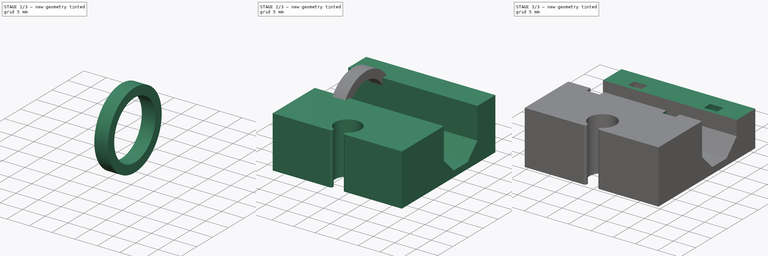
[diagram: build sequence overview — one tinted view per stage of 3, left to right]
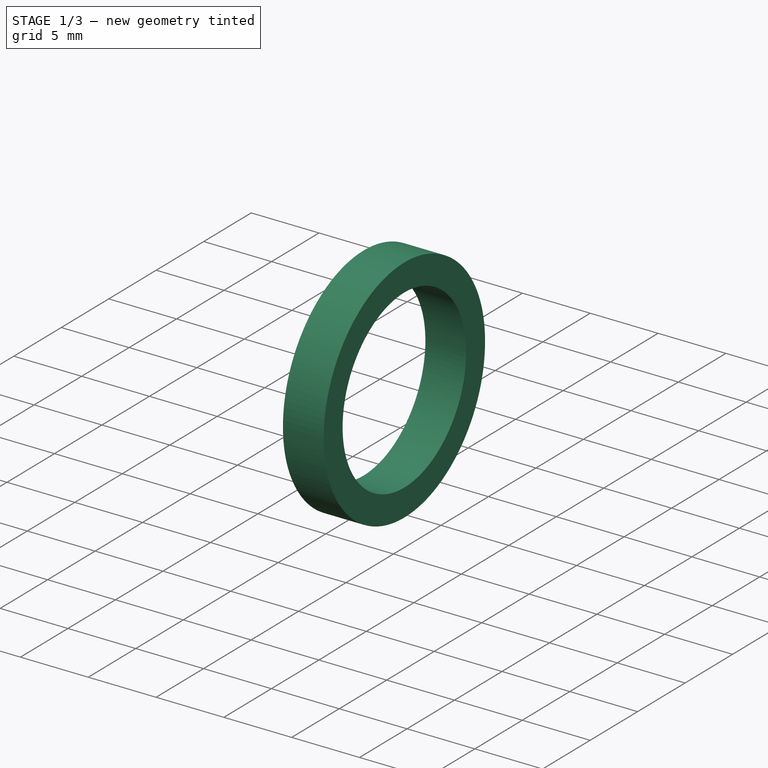
[diagram: stage 1 of 3 — iso view after this stage's code; geometry added in this stage tinted green]
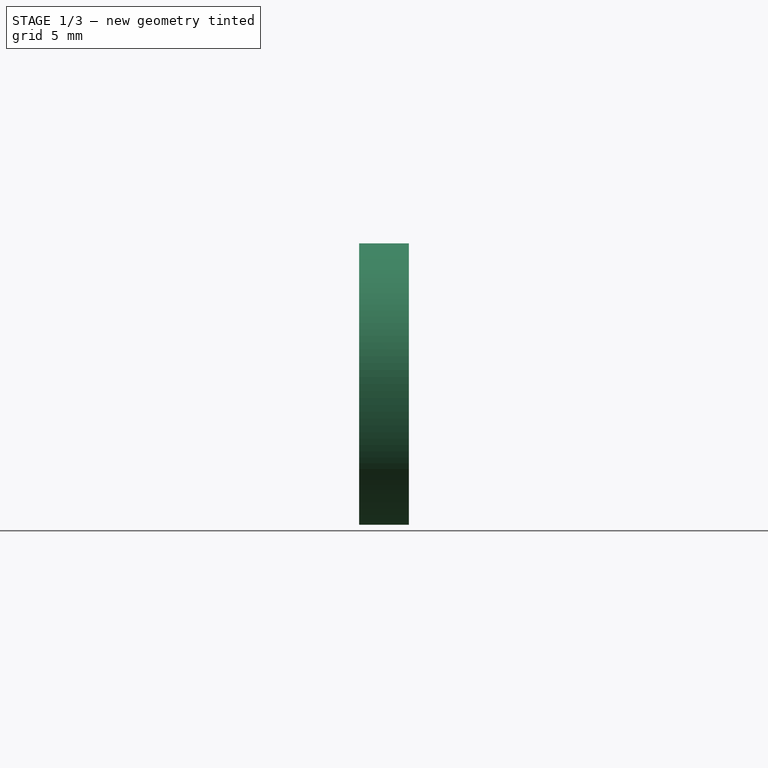
[diagram: stage 1 of 3 — front view after this stage's code; geometry added in this stage tinted green]
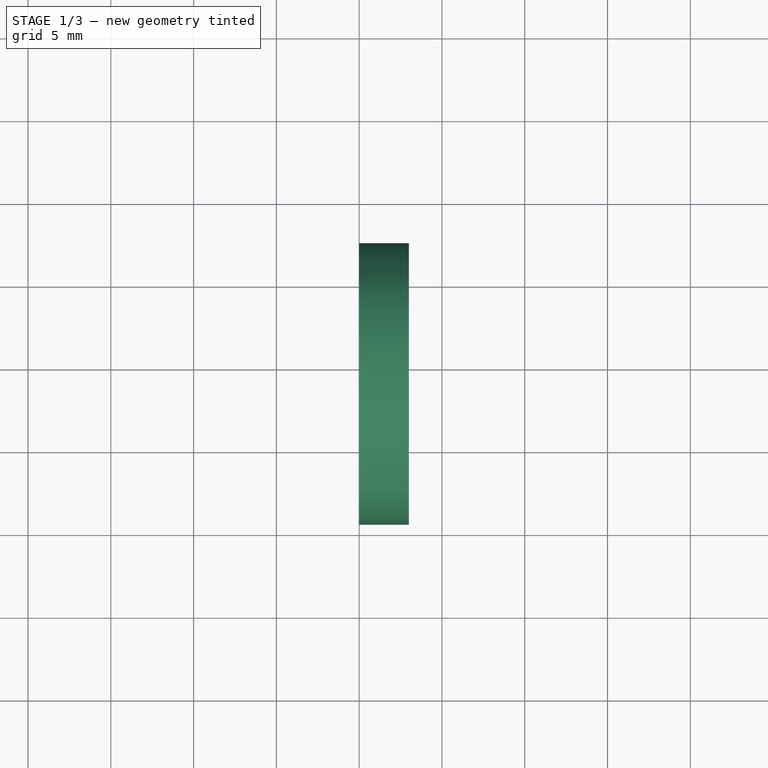
[diagram: stage 1 of 3 — top view after this stage's code; geometry added in this stage tinted green]
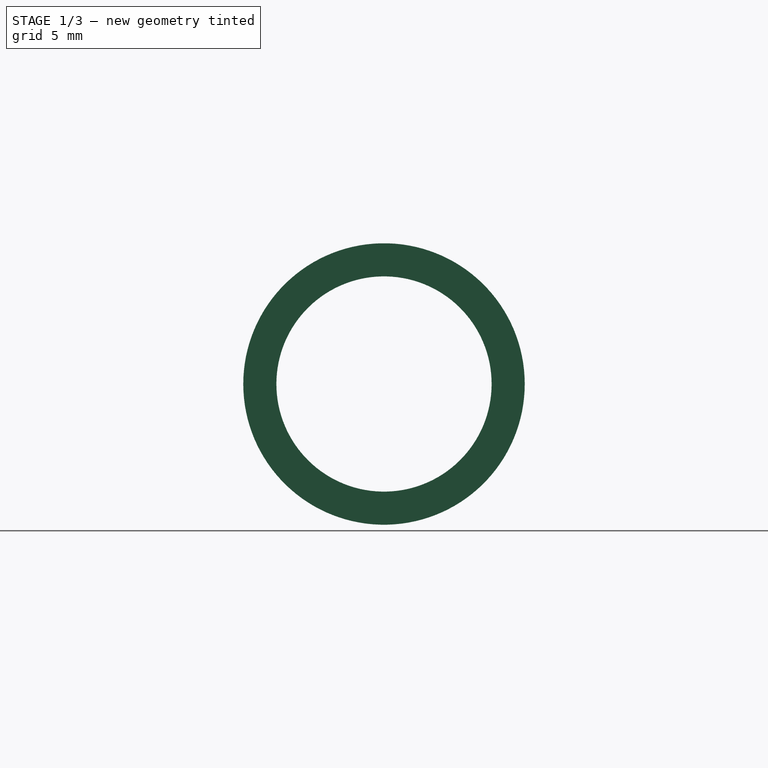
[diagram: stage 1 of 3 — right view after this stage's code; geometry added in this stage tinted green]
FCSTD DOCUMENT  (FreeCAD 0.16R5326 (Git))
Label: sliding-block
License: All rights reserved
LicenseURL: https://ru.wikipedia.org/wiki/All_rights_reserved
objects: Sketcher::SketchObject×6, PartDesign::Pocket×3, PartDesign::Pad×2, Part::Cut×2, Spreadsheet::Sheet×1, Part::Mirroring×1
note: 19 computed .brp shape members not serialized (recipe doc carries the construction recipe); baked Part::Feature solids carry a one-line shape summary decoded from their .brp

FEATURE [Sketcher::SketchObject] Sketch003
  Placement = pos=(10,0,0) rot=(0.57735,0.57735,0.57735;2.0944rad)
  sketch-geometry (1):
    g0: Circle CenterX=4 CenterY=7 CenterZ=0 NormalX=0 NormalY=0 NormalZ=1 Radius=8.5
  constraints (3):
    c: DistanceY(g-1,g0) = 7
    c: DistanceX(g-1,g0) = 4
    c: Radius(g0) = 8.5
FEATURE [PartDesign::Pad] Pad001
  Length = 3
  Length2 = 100
  Placement = pos=(10,0,0) rot=(0.57735,0.57735,0.57735;2.0944rad)
  Reversed = true
  Sketch = -> Sketch003
  Type = 0
FEATURE [Sketcher::SketchObject] Sketch004
  ExternalGeometry = -> [Pad001]
  Placement = pos=(10,0,0) rot=(0.57735,0.57735,0.57735;2.0944rad)
  Support = -> Pad001 [Face2]
  sketch-geometry (1):
    g0: Circle CenterX=4 CenterY=7 CenterZ=0 NormalX=0 NormalY=0 NormalZ=1 Radius=6.5
  constraints (2):
    c: Coincident(g0,g-3)
    c: Radius(g0) = 6.5
FEATURE [PartDesign::Pocket] Pocket002
  Length = 5
  Placement = pos=(10,0,0) rot=(0.57735,0.57735,0.57735;2.0944rad)
  Sketch = -> Sketch004
  Type = 1
FEATURE [Part::Mirroring] Part__Mirroring  label="Pocket002 (Mirror #1)"
  Base = (0,0,0)
  Normal = (1,0,0)
  Source = -> Pocket002
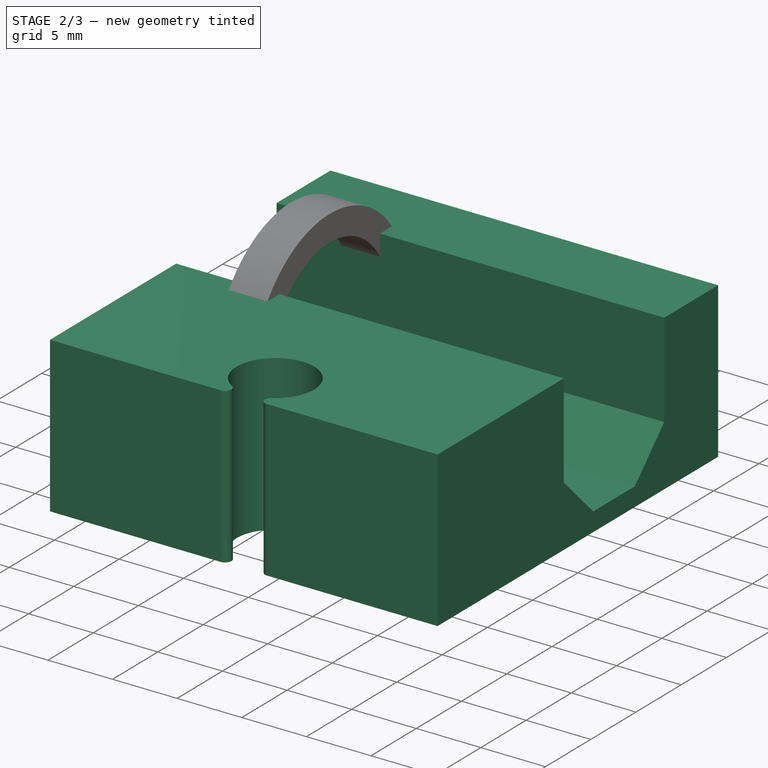
[diagram: stage 2 of 3 — iso view after this stage's code; geometry added in this stage tinted green]
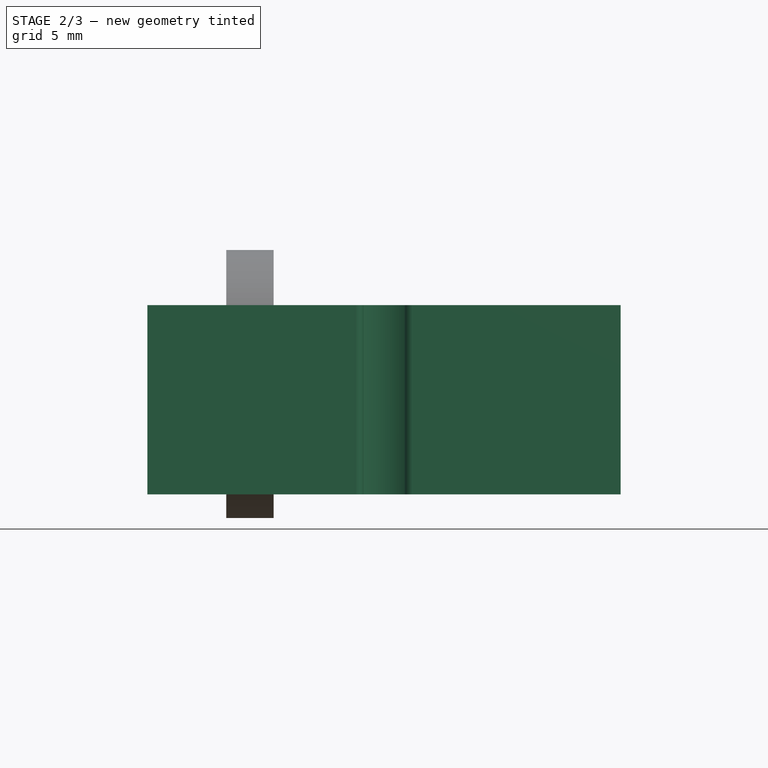
[diagram: stage 2 of 3 — front view after this stage's code; geometry added in this stage tinted green]
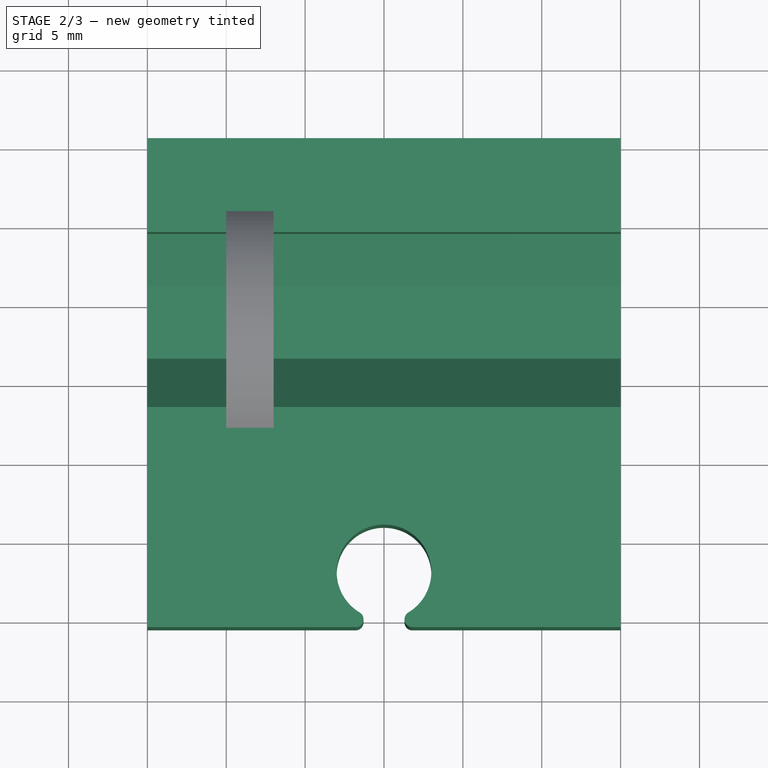
[diagram: stage 2 of 3 — top view after this stage's code; geometry added in this stage tinted green]
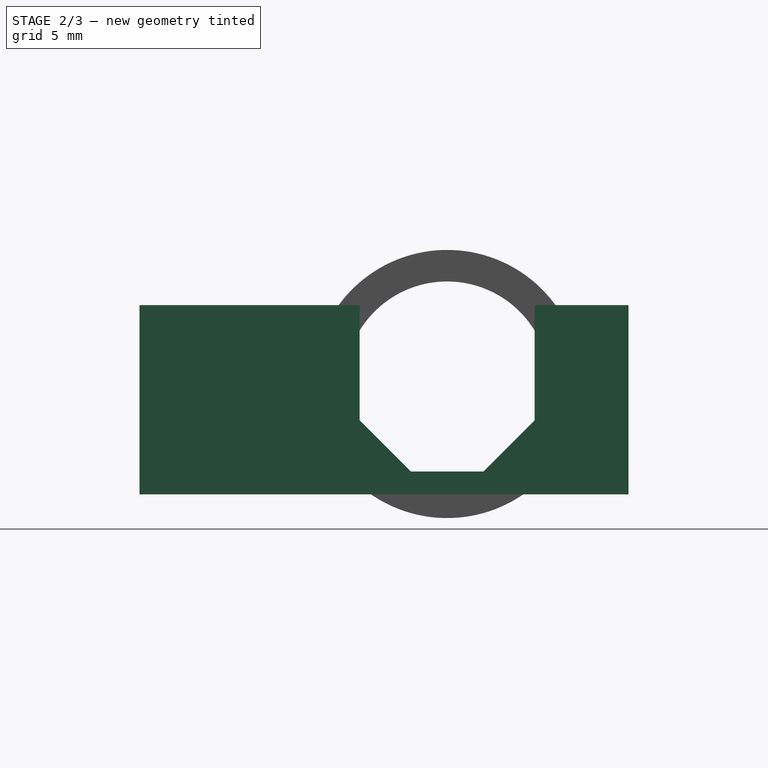
[diagram: stage 2 of 3 — right view after this stage's code; geometry added in this stage tinted green]
FEATURE [Spreadsheet::Sheet] Spreadsheet
  cells = A1=height; B1(c)=31.5; A2=Width; B2=34; A3=axis to axis; B3=18
  currColumn = 1
  currRow = 3
FEATURE [Sketcher::SketchObject] Sketch  label="body"
  sketch-geometry (8):
    g0: LineSegment StartX=-15 StartY=15.5 StartZ=0 EndX=15 EndY=15.5 EndZ=0
    g1: LineSegment StartX=15 StartY=15.5 StartZ=0 EndX=15 EndY=-15.5 EndZ=0
    g2: LineSegment StartX=-15 StartY=-15.5 StartZ=0 EndX=-15 EndY=15.5 EndZ=0
    g3: ArcOfCircle CenterX=0 CenterY=-12 CenterZ=0 NormalX=0 NormalY=0 NormalZ=1 Radius=3 StartAngle=5.25269 EndAngle=10.4553
    g4: ArcOfCircle CenterX=-1.79851 CenterY=-15.0026 CenterZ=0 NormalX=0 NormalY=0 NormalZ=1 Radius=0.5 StartAngle=4.61128 EndAngle=7.31803
    g5: LineSegment StartX=-15 StartY=-15.5 StartZ=0 EndX=-1.84898 EndY=-15.5 EndZ=0
    g6: ArcOfCircle CenterX=1.79851 CenterY=-15.0026 CenterZ=0 NormalX=0 NormalY=0 NormalZ=1 Radius=0.5 StartAngle=2.10675 EndAngle=4.8135
    g7: LineSegment StartX=1.84898 StartY=-15.5 StartZ=0 EndX=15 EndY=-15.5 EndZ=0
  constraints (25):
    c: Coincident(g0,g1)
    c: Coincident(g2,g0)
    c: Horizontal(g0)
    c: Vertical(g1)
    c: Vertical(g2)
    c: DistanceX(g0,g0) = 30
    c: DistanceY(g0,g1) = -31
    c: Symmetric(g0,g0,g-2)
    c: Symmetric(g1,g0,g-1)
    c: PointOnObject(g3,g-2)
    c: Radius(g3) = 3
    c: Coincident(g4,g3)
    c: Radius(g4) = 0.5
    c: Coincident(g5,g4)
    c: Horizontal(g5)
    c: Coincident(g5,g2)
    c: Equal(g1,g2)
    c: Coincident(g6,g3)
    c: Coincident(g7,g6)
    c: Coincident(g7,g1)
    c: Horizontal(g7)
    c: Equal(g7,g5)
    c: Equal(g6,g4)
    c: Symmetric(g3,g3,g-2)
    c: DistanceY(g-1,g3) = -12
FEATURE [PartDesign::Pad] Pad
  Length = 12
  Length2 = 100
  Sketch = -> Sketch
  Type = 0
FEATURE [Sketcher::SketchObject] Sketch001
  ExternalGeometry = -> [Pad]
  Placement = pos=(-15,0,0) rot=(0.57735,-0.57735,-0.57735;2.0944rad)
  Support = -> Pad [Face2]
  sketch-geometry (12):
    g0: LineSegment StartX=1.55 StartY=4.70111 StartZ=0 EndX=1.55 EndY=9.29889 EndZ=0
    g1: LineSegment [constr] StartX=1.55 StartY=9.29889 StartZ=0 EndX=-1.70111 EndY=12.55 EndZ=0
    g2: LineSegment [constr] StartX=-1.70111 StartY=12.55 StartZ=0 EndX=-6.29889 EndY=12.55 EndZ=0
    g3: LineSegment [constr] StartX=-6.29889 StartY=12.55 StartZ=0 EndX=-9.55 EndY=9.29889 EndZ=0
    g4: LineSegment StartX=-9.55 StartY=9.29889 StartZ=0 EndX=-9.55 EndY=4.70111 EndZ=0
    g5: LineSegment StartX=-9.55 StartY=4.70111 StartZ=0 EndX=-6.29889 EndY=1.45 EndZ=0
    g6: LineSegment StartX=-6.29889 StartY=1.45 StartZ=0 EndX=-1.70111 EndY=1.45 EndZ=0
    g7: LineSegment StartX=-1.70111 StartY=1.45 StartZ=0 EndX=1.55 EndY=4.70111 EndZ=0
    g8: Circle [constr] CenterX=-4 CenterY=7 CenterZ=0 NormalX=0 NormalY=0 NormalZ=1 Radius=6.00728
    g9: LineSegment StartX=-9.55 StartY=9.29889 StartZ=0 EndX=-9.55 EndY=12 EndZ=0
    g10: LineSegment StartX=-9.55 StartY=12 StartZ=0 EndX=1.55 EndY=12 EndZ=0
    g11: LineSegment StartX=1.55 StartY=12 StartZ=0 EndX=1.55 EndY=9.29889 EndZ=0
  constraints (29):
    c: Coincident(g0,g1)
    c: Coincident(g1,g2)
    c: Coincident(g2,g3)
    c: Coincident(g3,g4)
    c: Coincident(g4,g5)
    c: Coincident(g5,g6)
    c: Coincident(g6,g7)
    c: Coincident(g7,g0)
    c: Equal(g0, g1-g7) x7
    c: PointOnObject(g0,g8)
    c: PointOnObject(g1,g8)
    c: PointOnObject(g2,g8)
    c: PointOnObject(g3,g8)
    c: PointOnObject(g4,g8)
    c: PointOnObject(g5,g8)
    c: PointOnObject(g6,g8)
    c: PointOnObject(g7,g8)
    c: Horizontal(g6)
    c: DistanceY(g8,g6) = -5.55
    c: DistanceY(g8,g-4) = -7
    c: DistanceX(g-1,g8) = -4
    c: Vertical(g9)
    c: Coincident(g10,g9)
    c: PointOnObject(g10,g-3)
    c: Horizontal(g10)
    c: Coincident(g11,g10)
    c: Coincident(g11,g0)
    c: Vertical(g11)
    c: Coincident(g3,g9)
FEATURE [PartDesign::Pocket] Pocket
  Length = 5
  Sketch = -> Sketch001
  Type = 1
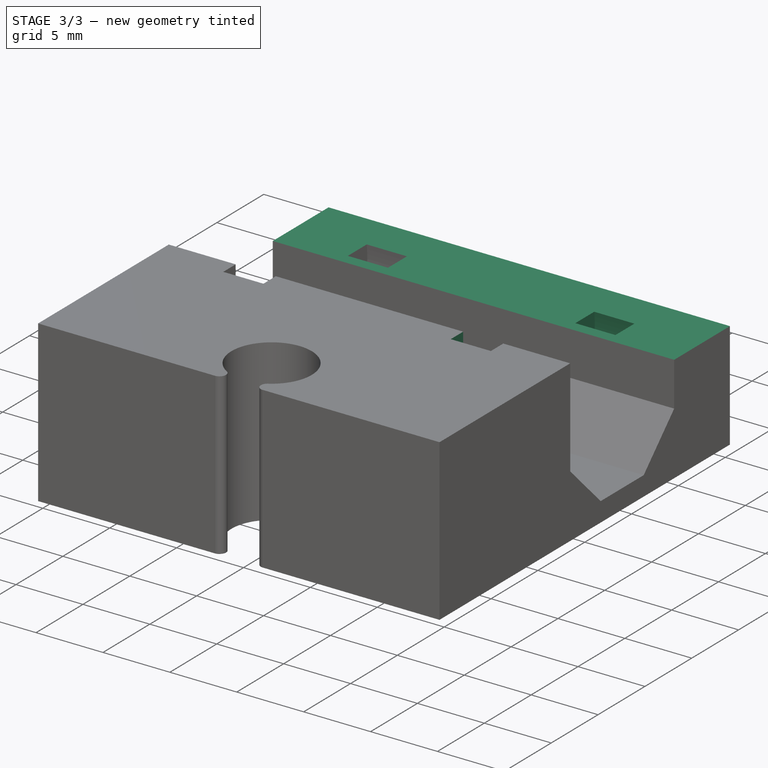
[diagram: stage 3 of 3 — iso view after this stage's code; geometry added in this stage tinted green]
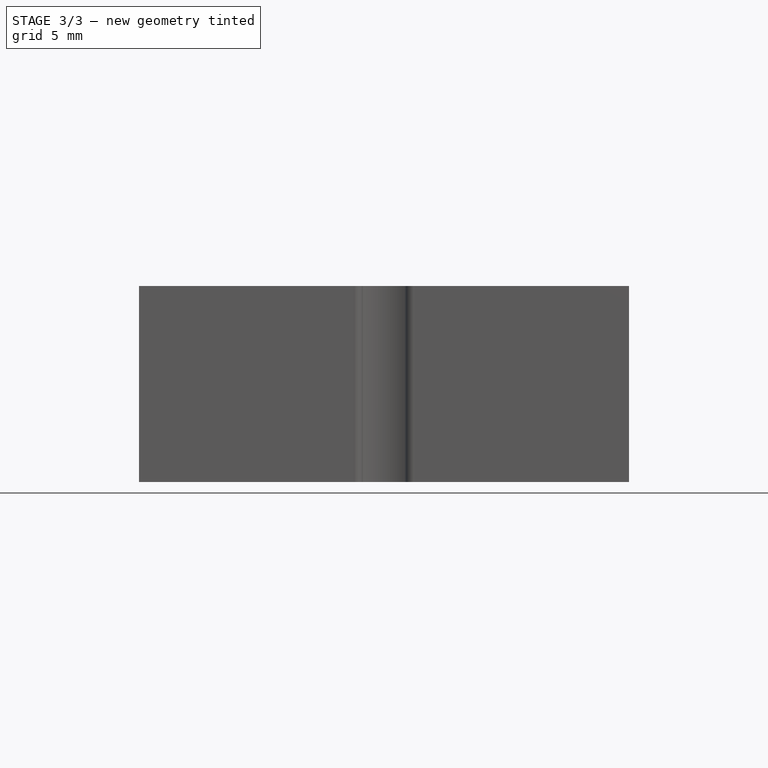
[diagram: stage 3 of 3 — front view after this stage's code; geometry added in this stage tinted green]
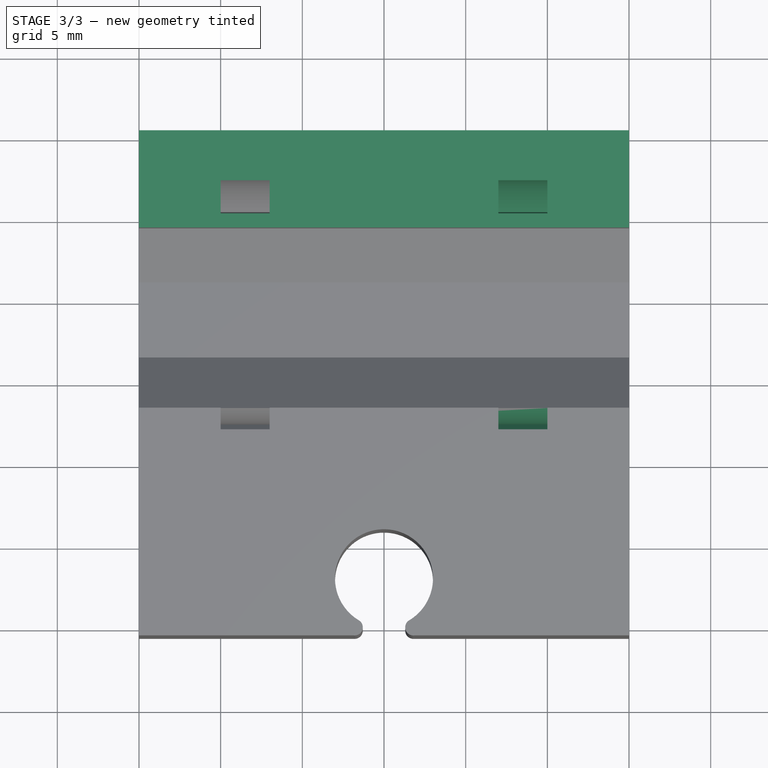
[diagram: stage 3 of 3 — top view after this stage's code; geometry added in this stage tinted green]
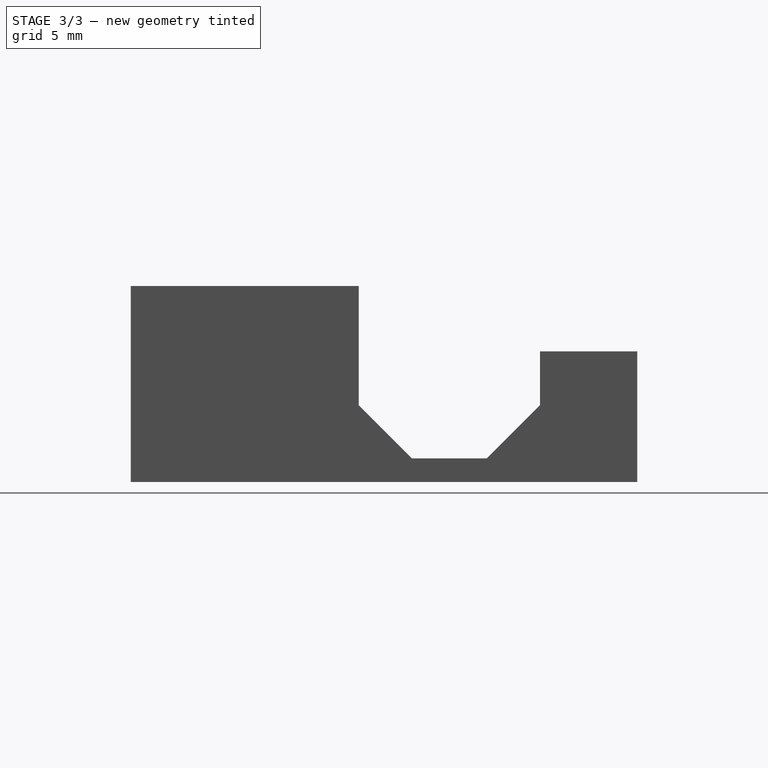
[diagram: stage 3 of 3 — right view after this stage's code; geometry added in this stage tinted green]
FEATURE [Sketcher::SketchObject] Sketch002
  ExternalGeometry = -> [Pocket]
  Placement = pos=(-15,0,0) rot=(0.57735,-0.57735,-0.57735;2.0944rad)
  Support = -> Pocket [Face2]
  sketch-geometry (4):
    g0: LineSegment StartX=-15.5 StartY=12 StartZ=0 EndX=-9.55 EndY=12 EndZ=0
    g1: LineSegment StartX=-9.55 StartY=12 StartZ=0 EndX=-9.55 EndY=8 EndZ=0
    g2: LineSegment StartX=-9.55 StartY=8 StartZ=0 EndX=-15.5 EndY=8 EndZ=0
    g3: LineSegment StartX=-15.5 StartY=8 StartZ=0 EndX=-15.5 EndY=12 EndZ=0
  constraints (11):
    c: Coincident(g0,g1)
    c: Coincident(g1,g2)
    c: Coincident(g2,g3)
    c: Coincident(g3,g0)
    c: Horizontal(g0)
    c: Horizontal(g2)
    c: Vertical(g1)
    c: Vertical(g3)
    c: Coincident(g0,g-3)
    c: Coincident(g0,g-3)
    c: DistanceY(g3) = 4
FEATURE [PartDesign::Pocket] Pocket001
  Length = 5
  Sketch = -> Sketch002
  Type = 1
FEATURE [Part::Cut] Cut
  Base = -> Pocket001
  Tool = -> Part__Mirroring
FEATURE [Part::Cut] Cut001
  Base = -> Cut
  Tool = -> Pocket002
FEATURE [Sketcher::SketchObject] Sketch005
  Placement = pos=(0,0,12) rot=(0,0,1;0rad)
  Support = -> Cut001 [Face5]
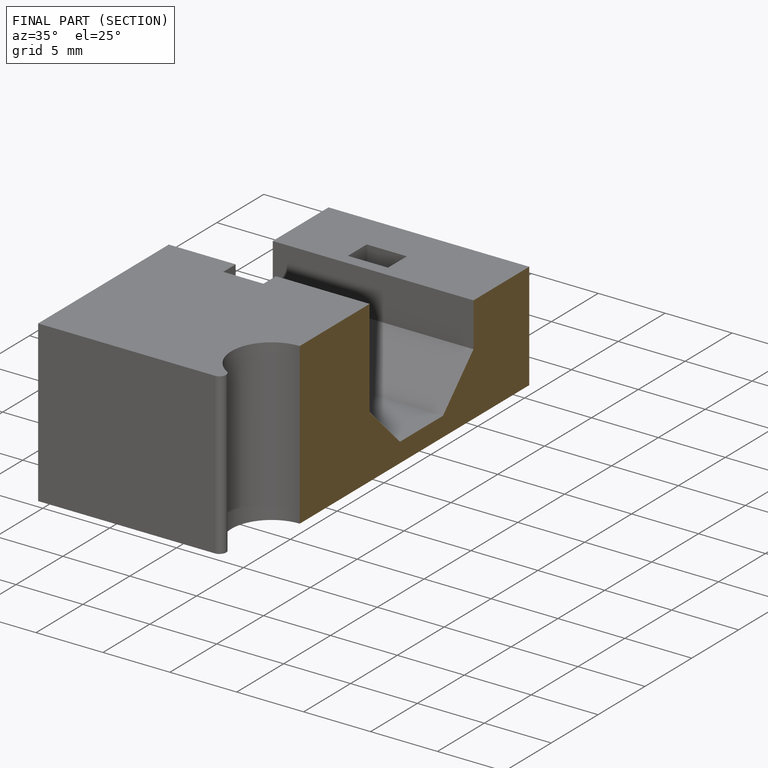
[diagram: finished part — half-section view (interior)]
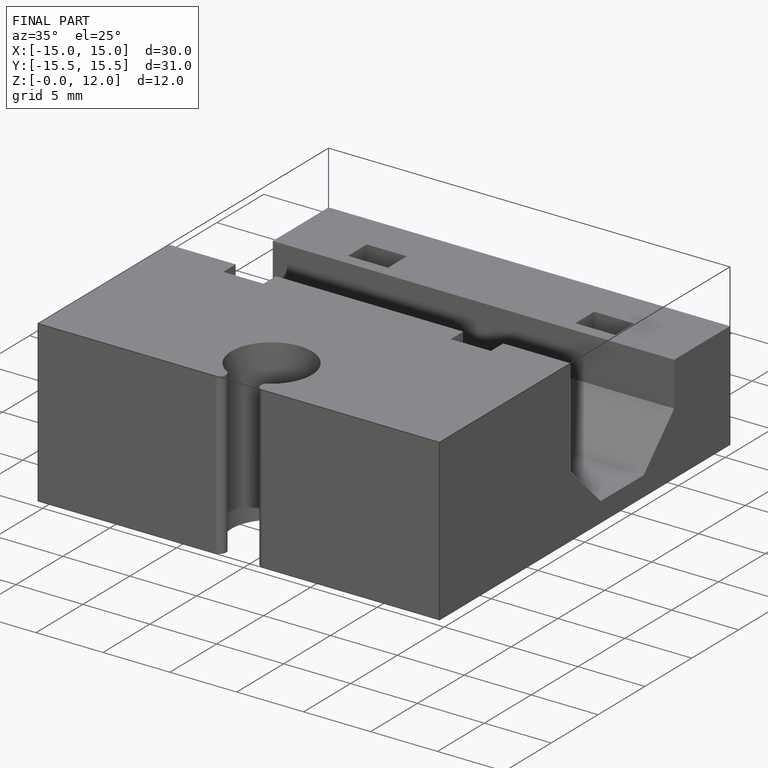
[diagram: finished part — iso view with bounding-box wireframe]
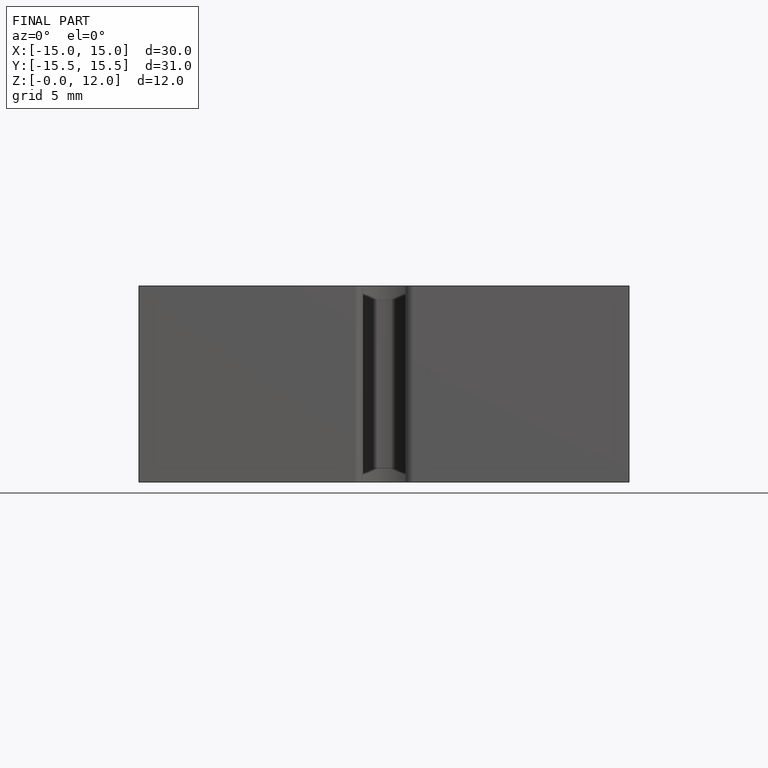
[diagram: finished part — front view with bounding-box wireframe]
